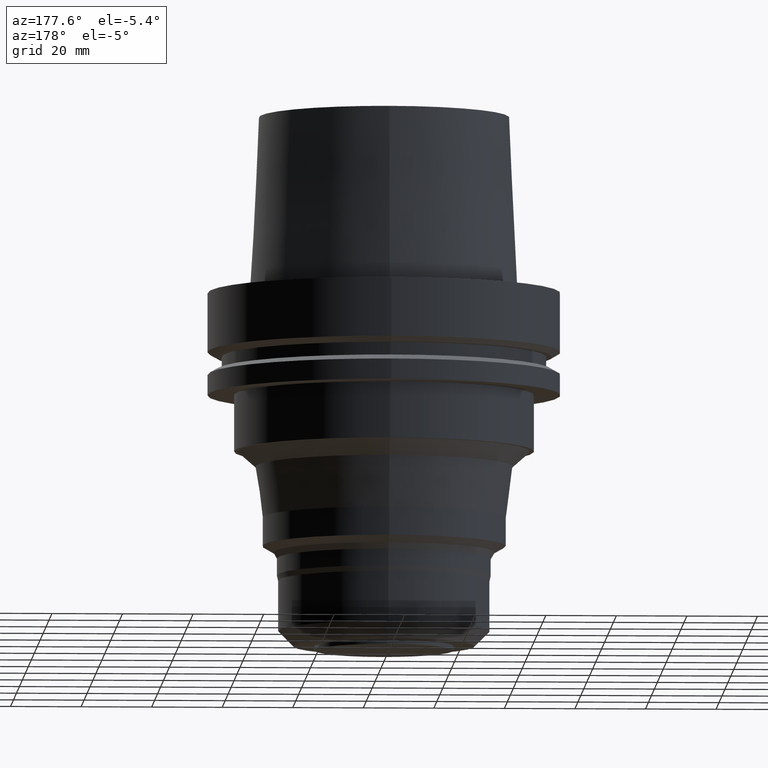
[diagram: clean part render]
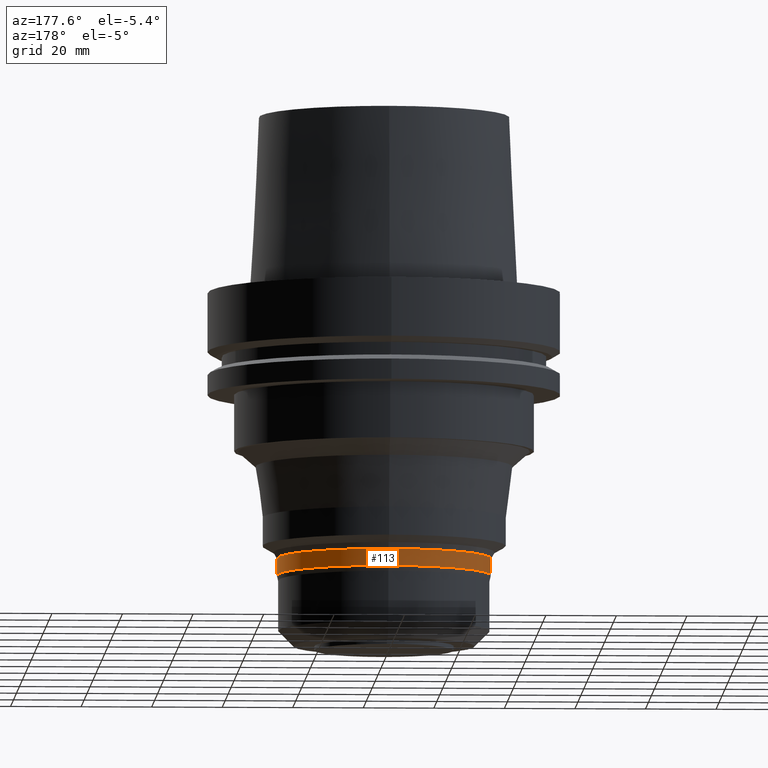
[diagram: same view with one face highlighted and labeled with its STEP entity id]
A machine part, auxiliary view. The second image highlights one B-rep face of the part: STEP entity #113.
In plain terms, the highlighted cylindrical surface (bore or boss wall) has radius 30.35 mm, axis along (0, 0, -1).
Its self-contained STEP definition (entity closure, byte-faithful):
#98=EDGE_CURVE('Unnamed[1]',#255,#255,#256,.T.);
#113=ADVANCED_FACE('Unnamed[1]',(#278,#279),#280,.T.);
#185=EDGE_CURVE('Unnamed[1]',#392,#392,#393,.T.);
#255=VERTEX_POINT('',#469);
#256=CIRCLE('',#470,30.3500000000004);
#278=FACE_BOUND('',#498,.T.);
#279=FACE_BOUND('',#499,.T.);
#280=CYLINDRICAL_SURFACE('',#500,30.3500000000004);
#392=VERTEX_POINT('',#641);
#393=CIRCLE('',#642,30.3500000000004);
#469=CARTESIAN_POINT('',(4.62002316687333E-015,30.3500000000004,-75.450704155516));
#470=AXIS2_PLACEMENT_3D('',#712,#713,#714);
#498=EDGE_LOOP('',(#737));
#499=EDGE_LOOP('',(#738));
#500=AXIS2_PLACEMENT_3D('',#739,#740,#741);
#641=CARTESIAN_POINT('',(4.91365035221888E-015,30.3500000000004,-80.2459999999993));
#642=AXIS2_PLACEMENT_3D('',#866,#867,#868);
#712=CARTESIAN_POINT('',(4.62002316687333E-015,-4.15984670037367E-015,-75.450704155516));
#713=DIRECTION('',(6.12323399573677E-017,5.75940563219809E-016,-1.0));
#714=DIRECTION('',(-4.00933410930822E-032,1.0,5.75940563219809E-016));
#737=ORIENTED_EDGE('',*,*,#185,.F.);
#738=ORIENTED_EDGE('',*,*,#98,.T.);
#739=CARTESIAN_POINT('',(4.76683675954611E-015,-2.77894400563501E-015,-77.8483520777576));
#740=DIRECTION('',(6.12323399573677E-017,5.75940563219809E-016,-1.0));
#741=DIRECTION('',(-4.00933410930822E-032,1.0,5.75940563219809E-016));
#866=CARTESIAN_POINT('',(4.91365035221888E-015,-1.39804131089634E-015,-80.2459999999993));
#867=DIRECTION('',(6.12323399573677E-017,5.75940563219809E-016,-1.0));
#868=DIRECTION('',(-4.00933410930822E-032,1.0,5.75940563219809E-016));